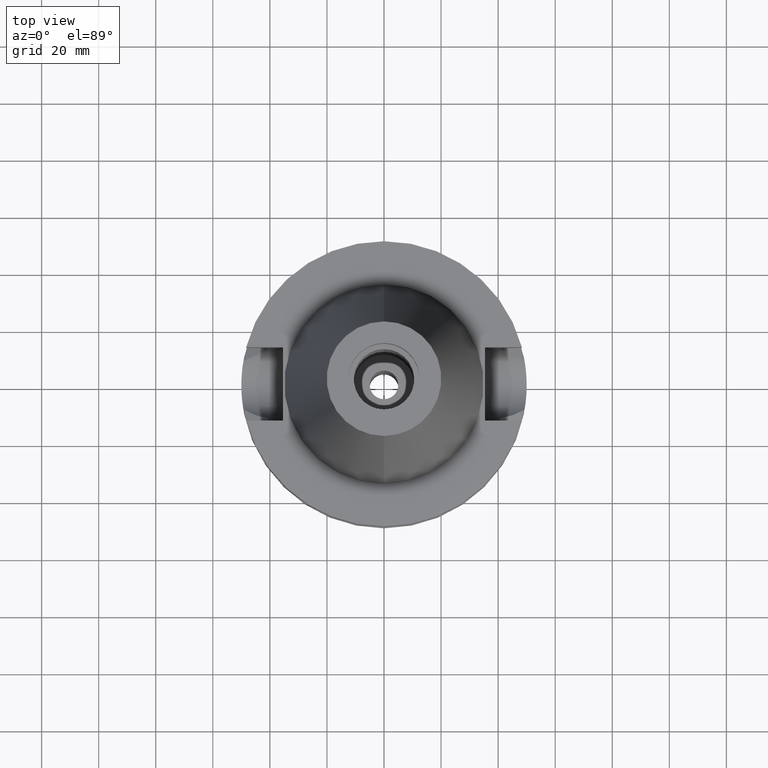
[diagram: clean part render]
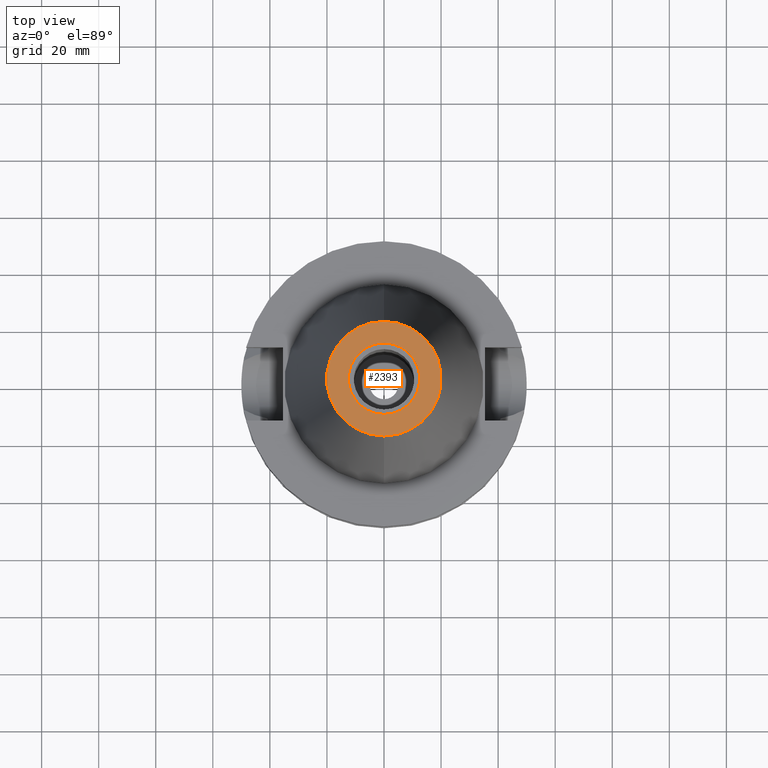
[diagram: same view with one face highlighted and labeled with its STEP entity id]
A machine part, top view. The second image highlights one B-rep face of the part: STEP entity #2393.
In plain terms, the highlighted planar face has unit normal (0, 0, -1).
Its self-contained STEP definition (entity closure, byte-faithful):
#1112=CARTESIAN_POINT('',(0.E0,0.E0,1.018E2));
#1113=DIRECTION('',(0.E0,0.E0,-1.E0));
#1114=DIRECTION('',(0.E0,-1.E0,0.E0));
#1115=AXIS2_PLACEMENT_3D('',#1112,#1113,#1114);
#1120=CARTESIAN_POINT('',(0.E0,0.E0,1.018E2));
#1121=DIRECTION('',(0.E0,0.E0,-1.E0));
#1122=DIRECTION('',(0.E0,1.E0,0.E0));
#1123=AXIS2_PLACEMENT_3D('',#1120,#1121,#1122);
#1128=CARTESIAN_POINT('',(0.E0,1.377605184361E-14,1.018E2));
#1129=DIRECTION('',(0.E0,0.E0,1.E0));
#1130=DIRECTION('',(0.E0,-1.E0,0.E0));
#1131=AXIS2_PLACEMENT_3D('',#1128,#1129,#1130);
#1136=CARTESIAN_POINT('',(0.E0,1.377605184361E-14,1.018E2));
#1137=DIRECTION('',(0.E0,0.E0,1.E0));
#1138=DIRECTION('',(0.E0,1.E0,0.E0));
#1139=AXIS2_PLACEMENT_3D('',#1136,#1137,#1138);
#1285=CARTESIAN_POINT('',(0.E0,1.25E1,1.018E2));
#1287=VERTEX_POINT('',#1285);
#1288=CARTESIAN_POINT('',(0.E0,-1.25E1,1.018E2));
#1289=VERTEX_POINT('',#1288);
#1461=CARTESIAN_POINT('',(0.E0,2.007942971896E1,1.018E2));
#1462=VERTEX_POINT('',#1461);
#1463=CARTESIAN_POINT('',(0.E0,-2.007942971896E1,1.018E2));
#1464=VERTEX_POINT('',#1463);
#2380=CARTESIAN_POINT('',(0.E0,1.246690441532E-14,1.018E2));
#2381=DIRECTION('',(0.E0,0.E0,-1.E0));
#2382=DIRECTION('',(0.E0,-1.E0,0.E0));
#2383=AXIS2_PLACEMENT_3D('',#2380,#2381,#2382);
#2384=PLANE('',#2383);
#2385=ORIENTED_EDGE('',*,*,#2359,.T.);
#2386=ORIENTED_EDGE('',*,*,#2375,.T.);
#2387=EDGE_LOOP('',(#2385,#2386));
#2388=FACE_OUTER_BOUND('',#2387,.F.);
#2389=ORIENTED_EDGE('',*,*,#1496,.T.);
#2390=ORIENTED_EDGE('',*,*,#1514,.T.);
#2391=EDGE_LOOP('',(#2389,#2390));
#2392=FACE_BOUND('',#2391,.F.);
#1116=CIRCLE('',#1115,2.007942971896E1);
#1124=CIRCLE('',#1123,2.007942971896E1);
#1132=CIRCLE('',#1131,1.25E1);
#1140=CIRCLE('',#1139,1.25E1);
#1496=EDGE_CURVE('',#1289,#1287,#1132,.T.);
#1514=EDGE_CURVE('',#1287,#1289,#1140,.T.);
#2359=EDGE_CURVE('',#1464,#1462,#1116,.T.);
#2375=EDGE_CURVE('',#1462,#1464,#1124,.T.);
#2393=ADVANCED_FACE('',(#2388,#2392),#2384,.F.);